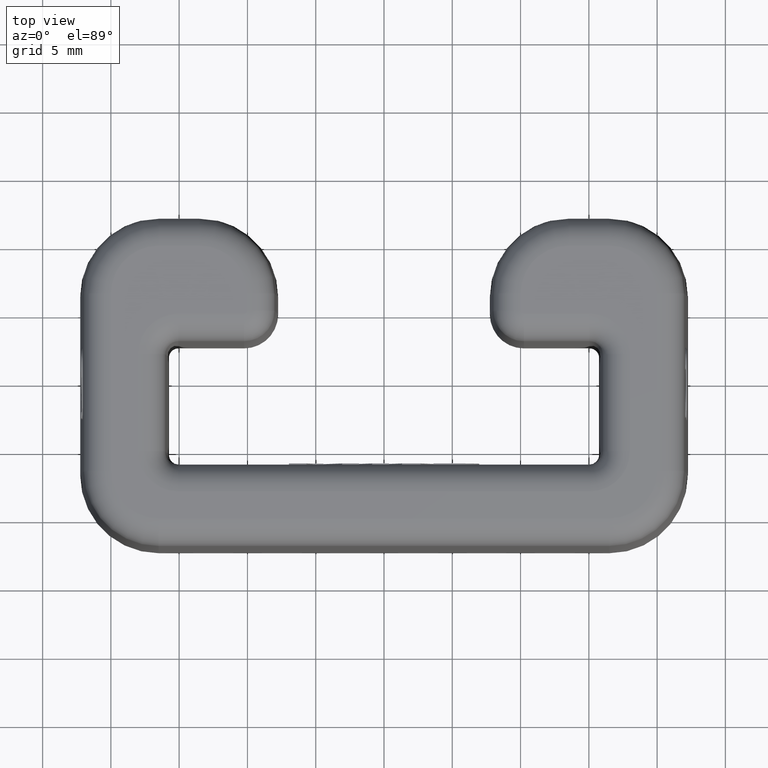
[diagram: clean part render]
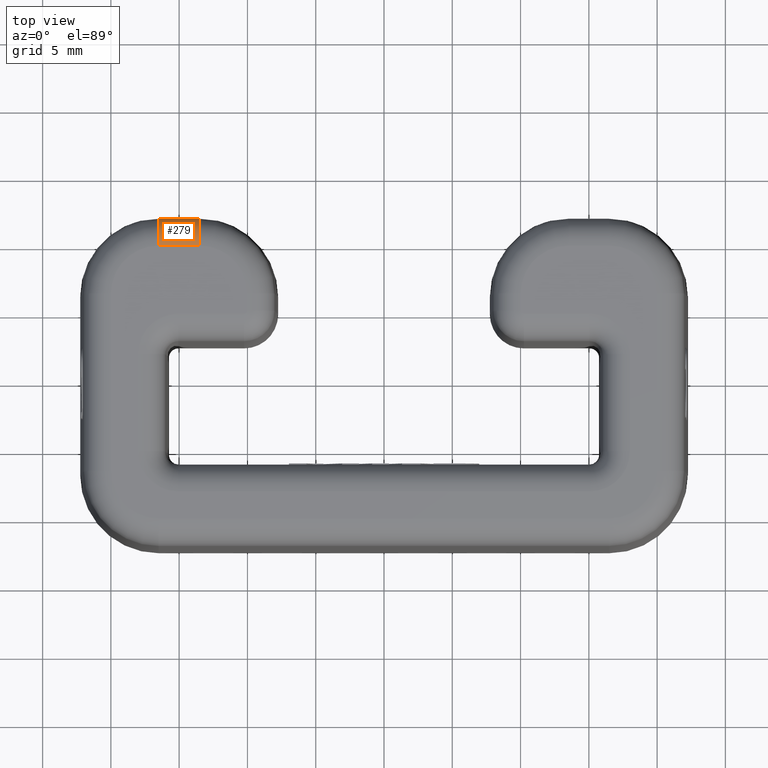
[diagram: same view with one face highlighted and labeled with its STEP entity id]
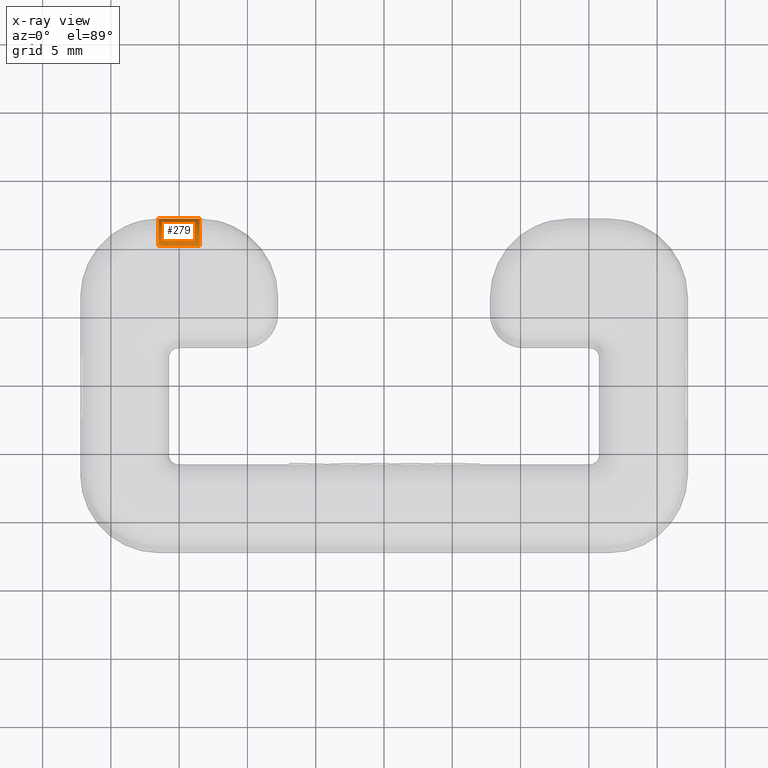
[diagram: x-ray of the same camera — body ghosted, the highlighted face saturated]
A machine part, top view. The second image highlights one B-rep face of the part: STEP entity #279.
The next image is the same camera in x-ray: the body ghosted, the highlighted face saturated — about 0% of this face is hidden behind the body in this view.
In plain terms, the highlighted cylindrical surface (edge-blend (fillet) strip) has radius 2 mm, axis along (1, 0, -0).
Its self-contained STEP definition (entity closure, byte-faithful):
#279=ADVANCED_FACE('',(#600),#601,.T.);
#600=FACE_OUTER_BOUND('',#1005,.T.);
#601=CYLINDRICAL_SURFACE('',#1006,2.0);
#1005=EDGE_LOOP('',(#2327,#2328,#2329,#2330));
#1006=AXIS2_PLACEMENT_3D('',#2331,#2332,#2333);
#2327=ORIENTED_EDGE('',*,*,#3046,.T.);
#2328=ORIENTED_EDGE('',*,*,#2968,.F.);
#2329=ORIENTED_EDGE('',*,*,#3044,.F.);
#2330=ORIENTED_EDGE('',*,*,#3009,.F.);
#2331=CARTESIAN_POINT('',(15.05,19.9846054737686,15.0));
#2332=DIRECTION('',(1.0,0.0,-0.0));
#2333=DIRECTION('',(0.0,0.0,1.0));
#2968=EDGE_CURVE('',#3595,#3597,#3598,.F.);
#3009=EDGE_CURVE('',#3661,#3664,#3665,.F.);
#3044=EDGE_CURVE('',#3664,#3595,#3707,.T.);
#3046=EDGE_CURVE('',#3661,#3597,#3709,.T.);
#3595=VERTEX_POINT('',#5111);
#3597=VERTEX_POINT('',#5113);
#3598=LINE('',#5114,#5115);
#3661=VERTEX_POINT('',#5204);
#3664=VERTEX_POINT('',#5208);
#3665=LINE('',#5209,#5210);
#3707=CIRCLE('',#5264,2.0);
#3709=CIRCLE('',#5266,2.0);
#5111=CARTESIAN_POINT('',(-13.5,19.9846054737686,17.0));
#5113=CARTESIAN_POINT('',(-16.5,19.9846054737686,17.0));
#5114=CARTESIAN_POINT('',(-16.5,19.9846054737686,17.0));
#5115=VECTOR('',#5720,1000.0);
#5204=CARTESIAN_POINT('',(-16.5,21.9843008640814,15.0349048128745));
#5208=CARTESIAN_POINT('',(-13.5,21.9843008640814,15.0349048128745));
#5209=CARTESIAN_POINT('',(-13.5,21.9843008640814,15.0349048128745));
#5210=VECTOR('',#5787,1000.0);
#5264=AXIS2_PLACEMENT_3D('',#5866,#5867,#5868);
#5266=AXIS2_PLACEMENT_3D('',#5872,#5873,#5874);
#5720=DIRECTION('',(1.0,0.0,0.0));
#5787=DIRECTION('',(-1.0,0.0,0.0));
#5866=CARTESIAN_POINT('',(-13.5,19.9846054737686,15.0));
#5867=DIRECTION('',(1.0,0.0,0.0));
#5868=DIRECTION('',(0.0,0.0,-1.0));
#5872=CARTESIAN_POINT('',(-16.5,19.9846054737686,15.0));
#5873=DIRECTION('',(1.0,0.0,0.0));
#5874=DIRECTION('',(0.0,0.0,-1.0));